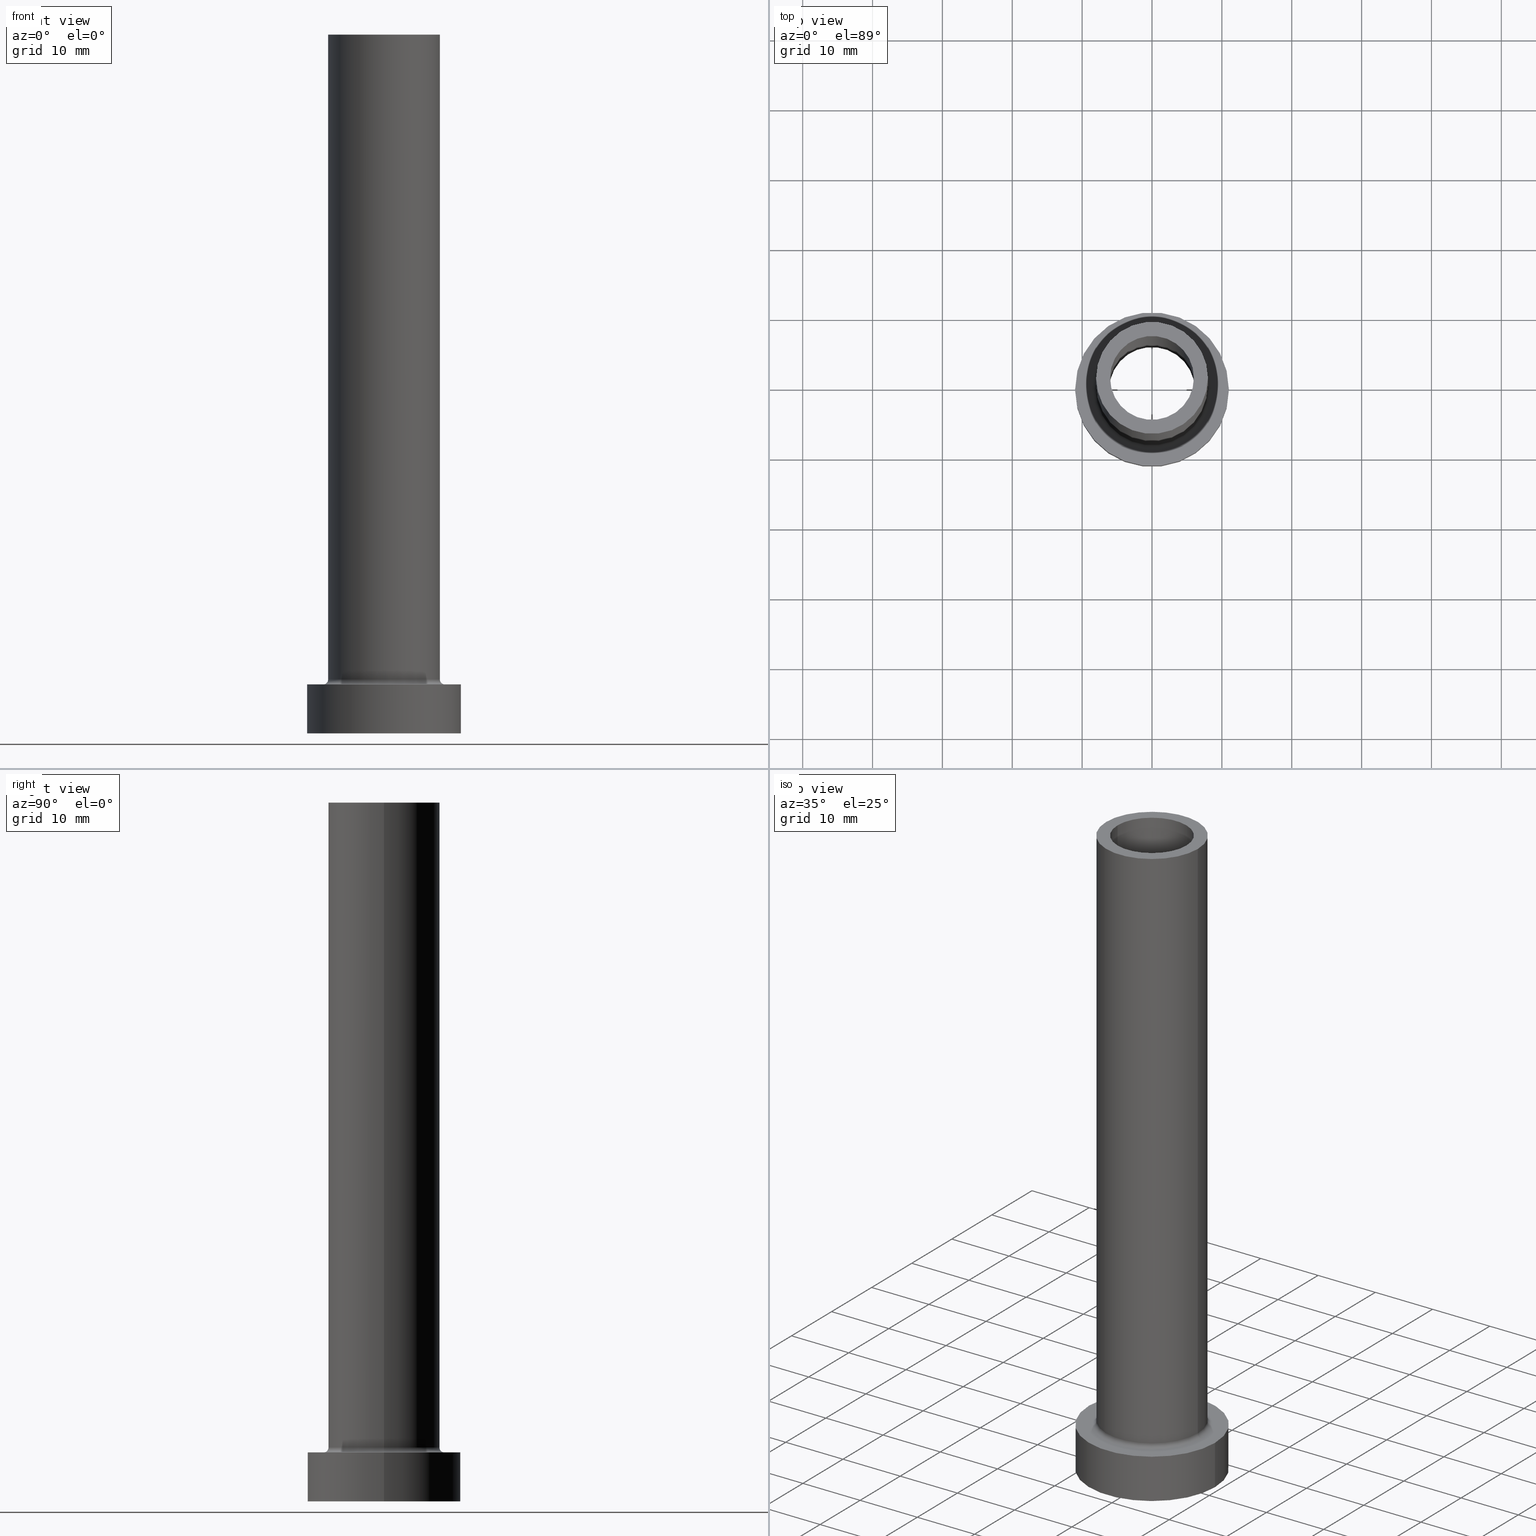
[diagram: canonical four-view strip — front | top / right | iso, engineering-drawing reading convention]
A machine part, canonical four-view strip (front | top / right | iso — engineering-drawing reading convention). The complete STEP part file that produces these views, byte-faithful:
ISO-10303-21;
HEADER;
FILE_DESCRIPTION (( 'STEP AP203' ),
    '1' );
FILE_NAME ('7b1e.STEP',
    '2023-02-13T07:43:09',
    ( '' ),
    ( '' ),
    'SwSTEP 2.0',
    'SolidWorks 2019',
    '' );
FILE_SCHEMA (( 'CONFIG_CONTROL_DESIGN' ));
ENDSEC;

DATA;
#1 = CARTESIAN_POINT ( 'NONE',  ( 0.000000000000000000, 0.000000000000000000, 0.000000000000000000 ) ) ;
#2 = DIRECTION ( 'NONE',  ( 0.000000000000000000, 0.000000000000000000, 1.000000000000000000 ) ) ;
#3 = APPROVAL_PERSON_ORGANIZATION ( #289, #35, #211 ) ;
#4 = APPROVAL ( #451, 'NEUR�EN�' ) ;
#5 = DIRECTION ( 'NONE',  ( 1.000000000000000000, 0.000000000000000000, 0.000000000000000000 ) ) ;
#6 = CARTESIAN_POINT ( 'NONE',  ( 0.000000000000000000, 0.000000000000000000, 7.000000000000000000 ) ) ;
#7 = ORIENTED_EDGE ( 'NONE', *, *, #260, .T. ) ;
#8 = DIRECTION ( 'NONE',  ( -1.000000000000000000, 0.000000000000000000, 0.000000000000000000 ) ) ;
#9 = EDGE_LOOP ( 'NONE', ( #370, #77, #383, #232 ) ) ;
#10 = VECTOR ( 'NONE', #273, 1000.000000000000000 ) ;
#11 = EDGE_CURVE ( 'NONE', #124, #224, #206, .T. ) ;
#12 = ORIENTED_EDGE ( 'NONE', *, *, #170, .T. ) ;
#13 = AXIS2_PLACEMENT_3D ( 'NONE', #104, #250, #63 ) ;
#14 = EDGE_LOOP ( 'NONE', ( #439, #444, #348, #274 ) ) ;
#15 = ADVANCED_FACE ( 'NONE', ( #317 ), #64, .F. ) ;
#16 = CARTESIAN_POINT ( 'NONE',  ( 0.000000000000000000, 0.000000000000000000, 100.0000000000000000 ) ) ;
#17 = DIRECTION ( 'NONE',  ( -0.000000000000000000, -0.000000000000000000, -1.000000000000000000 ) ) ;
#18 = CARTESIAN_POINT ( 'NONE',  ( -11.00000000000000000, 0.000000000000000000, 7.000000000000000000 ) ) ;
#19 = ORIENTED_EDGE ( 'NONE', *, *, #460, .F. ) ;
#20 = DIRECTION ( 'NONE',  ( 0.000000000000000000, 0.000000000000000000, 1.000000000000000000 ) ) ;
#21 = ORIENTED_EDGE ( 'NONE', *, *, #399, .F. ) ;
#22 = ADVANCED_FACE ( 'NONE', ( #238 ), #341, .F. ) ;
#23 = VERTEX_POINT ( 'NONE', #199 ) ;
#24 = DIRECTION ( 'NONE',  ( 0.000000000000000000, 0.000000000000000000, 1.000000000000000000 ) ) ;
#25 = PERSON_AND_ORGANIZATION ( #48, #103 ) ;
#26 = DIRECTION ( 'NONE',  ( 0.000000000000000000, 0.000000000000000000, -1.000000000000000000 ) ) ;
#27 = PERSON_AND_ORGANIZATION ( #48, #103 ) ;
#28 = DIRECTION ( 'NONE',  ( 0.000000000000000000, -1.000000000000000000, 0.000000000000000000 ) ) ;
#29 = CARTESIAN_POINT ( 'NONE',  ( -8.699999999999999289, 1.065442715258197248E-15, 7.699999999999998401 ) ) ;
#30 = AXIS2_PLACEMENT_3D ( 'NONE', #130, #278, #240 ) ;
#31 = CIRCLE ( 'NONE', #175, 8.000000000000000000 ) ;
#32 = DIRECTION ( 'NONE',  ( -1.000000000000000000, 0.000000000000000000, 0.000000000000000000 ) ) ;
#33 = CARTESIAN_POINT ( 'NONE',  ( 0.000000000000000000, 0.000000000000000000, 72.39482681718907031 ) ) ;
#34 = ORIENTED_EDGE ( 'NONE', *, *, #230, .T. ) ;
#35 = APPROVAL ( #144, 'NEUR�EN�' ) ;
#36 = PLANE ( 'NONE',  #183 ) ;
#37 = ORIENTED_EDGE ( 'NONE', *, *, #294, .T. ) ;
#38 = AXIS2_PLACEMENT_3D ( 'NONE', #33, #329, #258 ) ;
#39 = DIRECTION ( 'NONE',  ( 1.000000000000000000, 0.000000000000000000, -0.000000000000000000 ) ) ;
#40 = ORIENTED_EDGE ( 'NONE', *, *, #260, .F. ) ;
#41 = CARTESIAN_POINT ( 'NONE',  ( 0.000000000000000000, 0.000000000000000000, 55.00000000000000711 ) ) ;
#42 = VERTEX_POINT ( 'NONE', #276 ) ;
#43 = FACE_OUTER_BOUND ( 'NONE', #428, .T. ) ;
#44 = EDGE_LOOP ( 'NONE', ( #406, #344 ) ) ;
#45 = DIRECTION ( 'NONE',  ( 1.000000000000000000, 0.000000000000000000, 0.000000000000000000 ) ) ;
#46 = DIRECTION ( 'NONE',  ( -1.000000000000000000, 0.000000000000000000, 0.000000000000000000 ) ) ;
#47 = ORIENTED_EDGE ( 'NONE', *, *, #230, .F. ) ;
#48 = PERSON ( 'NEUR�EN�', 'NEUR�EN�', 'NEUR�EN�', ('NEUR�EN�'), ('NEUR�EN�'), ('NEUR�EN�') ) ;
#49 = DIRECTION ( 'NONE',  ( 1.000000000000000000, 0.000000000000000000, -0.000000000000000000 ) ) ;
#50 = CARTESIAN_POINT ( 'NONE',  ( 0.000000000000000000, 0.000000000000000000, 7.000000000000000000 ) ) ;
#51 = CC_DESIGN_APPROVAL ( #4, ( #65 ) ) ;
#52 =( LENGTH_UNIT ( ) NAMED_UNIT ( * ) SI_UNIT ( .MILLI., .METRE. ) );
#53 = ORIENTED_EDGE ( 'NONE', *, *, #125, .T. ) ;
#54 = CIRCLE ( 'NONE', #292, 11.00000000000000000 ) ;
#55 =( NAMED_UNIT ( * ) PLANE_ANGLE_UNIT ( ) SI_UNIT ( $, .RADIAN. ) );
#56 = ORIENTED_EDGE ( 'NONE', *, *, #74, .F. ) ;
#57 = CLOSED_SHELL ( 'NONE', ( #112, #301, #15, #254, #452, #72, #396, #245, #433, #382, #239, #367, #89, #22 ) ) ;
#58 = APPLICATION_CONTEXT ( 'configuration controlled 3d designs of mechanical parts and assemblies' ) ;
#59 = MECHANICAL_CONTEXT ( 'NONE', #58, 'mechanical' ) ;
#60 = DIRECTION ( 'NONE',  ( -0.000000000000000000, -0.000000000000000000, -1.000000000000000000 ) ) ;
#61 = FACE_OUTER_BOUND ( 'NONE', #430, .T. ) ;
#62 = SECURITY_CLASSIFICATION_LEVEL ( 'unclassified' ) ;
#63 = DIRECTION ( 'NONE',  ( 1.000000000000000000, 0.000000000000000000, 0.000000000000000000 ) ) ;
#64 = TOROIDAL_SURFACE ( 'NONE', #355, 8.699999999999999289, 0.6999999999999999556 ) ;
#65 = PRODUCT_DEFINITION ( 'NEZN�M�', '', #415, #272 ) ;
#66 = CALENDAR_DATE ( 2023, 13, 2 ) ;
#67 = DIRECTION ( 'NONE',  ( 0.000000000000000000, 0.000000000000000000, 1.000000000000000000 ) ) ;
#68 = EDGE_CURVE ( 'NONE', #345, #364, #262, .T. ) ;
#69 = DIRECTION ( 'NONE',  ( -0.000000000000000000, -0.000000000000000000, -1.000000000000000000 ) ) ;
#70 = EDGE_CURVE ( 'NONE', #236, #334, #442, .T. ) ;
#71 = CC_DESIGN_APPROVAL ( #35, ( #441 ) ) ;
#72 = ADVANCED_FACE ( 'NONE', ( #410 ), #94, .T. ) ;
#73 = DIRECTION ( 'NONE',  ( 1.000000000000000000, 0.000000000000000000, 0.000000000000000000 ) ) ;
#74 = EDGE_CURVE ( 'NONE', #414, #448, #327, .T. ) ;
#75 = CIRCLE ( 'NONE', #85, 6.150000000000000355 ) ;
#76 = CYLINDRICAL_SURFACE ( 'NONE', #405, 6.150000000000000355 ) ;
#77 = ORIENTED_EDGE ( 'NONE', *, *, #122, .T. ) ;
#78 = CARTESIAN_POINT ( 'NONE',  ( 0.000000000000000000, 0.000000000000000000, 100.0000000000000000 ) ) ;
#79 = ORIENTED_EDGE ( 'NONE', *, *, #417, .T. ) ;
#80 = AXIS2_PLACEMENT_3D ( 'NONE', #16, #309, #46 ) ;
#81 = CARTESIAN_POINT ( 'NONE',  ( 8.699999999999999289, 0.000000000000000000, 6.999999999999999112 ) ) ;
#82 = ORIENTED_EDGE ( 'NONE', *, *, #146, .F. ) ;
#83 = EDGE_CURVE ( 'NONE', #42, #236, #362, .T. ) ;
#84 = CC_DESIGN_PERSON_AND_ORGANIZATION_ASSIGNMENT ( #141, #287, ( #415 ) ) ;
#85 = AXIS2_PLACEMENT_3D ( 'NONE', #391, #67, #456 ) ;
#86 = EDGE_LOOP ( 'NONE', ( #150, #194, #263, #305 ) ) ;
#87 = CARTESIAN_POINT ( 'NONE',  ( 0.000000000000000000, 0.000000000000000000, 7.000000000000000000 ) ) ;
#88 = ORIENTED_EDGE ( 'NONE', *, *, #373, .F. ) ;
#89 = ADVANCED_FACE ( 'NONE', ( #422, #295 ), #322, .F. ) ;
#90 = VECTOR ( 'NONE', #233, 1000.000000000000000 ) ;
#91 = PLANE ( 'NONE',  #218 ) ;
#92 = DIRECTION ( 'NONE',  ( -1.000000000000000000, 0.000000000000000000, 0.000000000000000000 ) ) ;
#93 = VECTOR ( 'NONE', #147, 1000.000000000000000 ) ;
#94 = CYLINDRICAL_SURFACE ( 'NONE', #212, 11.00000000000000000 ) ;
#95 = DIRECTION ( 'NONE',  ( 1.000000000000000000, 0.000000000000000000, 0.000000000000000000 ) ) ;
#96 = ORIENTED_EDGE ( 'NONE', *, *, #74, .T. ) ;
#97 = ORIENTED_EDGE ( 'NONE', *, *, #173, .F. ) ;
#98 = APPLICATION_PROTOCOL_DEFINITION ( 'international standard', 'config_control_design', 1994, #113 ) ;
#99 = ORIENTED_EDGE ( 'NONE', *, *, #402, .T. ) ;
#100 = PERSON_AND_ORGANIZATION ( #48, #103 ) ;
#101 = DIRECTION ( 'NONE',  ( 0.000000000000000000, 0.000000000000000000, 1.000000000000000000 ) ) ;
#102 = APPROVAL_ROLE ( '' ) ;
#103 = ORGANIZATION ( 'NEUR�EN�', 'NEUR�EN�', '' ) ;
#104 = CARTESIAN_POINT ( 'NONE',  ( 0.000000000000000000, 0.000000000000000000, 7.699999999999998401 ) ) ;
#105 = APPROVAL ( #282, 'NEUR�EN�' ) ;
#106 = MANIFOLD_SOLID_BREP ( 'Odebrat vysunut�m4', #57 ) ;
#107 = AXIS2_PLACEMENT_3D ( 'NONE', #368, #193, #39 ) ;
#108 = COORDINATED_UNIVERSAL_TIME_OFFSET ( 1, 0, .AHEAD. ) ;
#109 = DIRECTION ( 'NONE',  ( -1.000000000000000000, 1.224646799147353207E-16, 0.000000000000000000 ) ) ;
#110 = DATE_AND_TIME ( #392, #164 ) ;
#111 = CARTESIAN_POINT ( 'NONE',  ( -11.00000000000000000, 0.000000000000000000, 7.000000000000000000 ) ) ;
#112 = ADVANCED_FACE ( 'NONE', ( #424 ), #138, .F. ) ;
#113 = APPLICATION_CONTEXT ( 'configuration controlled 3d designs of mechanical parts and assemblies' ) ;
#114 = DIRECTION ( 'NONE',  ( 1.000000000000000000, 0.000000000000000000, 0.000000000000000000 ) ) ;
#115 = CARTESIAN_POINT ( 'NONE',  ( 0.000000000000000000, 0.000000000000000000, 7.699999999999998401 ) ) ;
#116 = ORIENTED_EDGE ( 'NONE', *, *, #399, .T. ) ;
#117 = CIRCLE ( 'NONE', #220, 6.000000000000000888 ) ;
#118 = AXIS2_PLACEMENT_3D ( 'NONE', #181, #145, #253 ) ;
#119 = CARTESIAN_POINT ( 'NONE',  ( 0.000000000000000000, 0.000000000000000000, 7.000000000000000000 ) ) ;
#120 = ORIENTED_EDGE ( 'NONE', *, *, #192, .T. ) ;
#121 = ORIENTED_EDGE ( 'NONE', *, *, #70, .F. ) ;
#122 = EDGE_CURVE ( 'NONE', #197, #23, #320, .T. ) ;
#123 = FACE_OUTER_BOUND ( 'NONE', #284, .T. ) ;
#124 = VERTEX_POINT ( 'NONE', #358 ) ;
#125 = EDGE_CURVE ( 'NONE', #42, #336, #425, .T. ) ;
#126 = VERTEX_POINT ( 'NONE', #286 ) ;
#127 = APPLICATION_PROTOCOL_DEFINITION ( 'international standard', 'config_control_design', 1994, #58 ) ;
#128 = ORIENTED_EDGE ( 'NONE', *, *, #225, .F. ) ;
#129 = DIRECTION ( 'NONE',  ( -0.000000000000000000, -0.000000000000000000, -1.000000000000000000 ) ) ;
#130 = CARTESIAN_POINT ( 'NONE',  ( 0.000000000000000000, 0.000000000000000000, 100.0000000000000000 ) ) ;
#131 = AXIS2_PLACEMENT_3D ( 'NONE', #389, #26, #32 ) ;
#132 = CARTESIAN_POINT ( 'NONE',  ( 11.00000000000000000, 1.347111479062088405E-15, 7.000000000000000000 ) ) ;
#133 = VERTEX_POINT ( 'NONE', #184 ) ;
#134 = AXIS2_PLACEMENT_3D ( 'NONE', #445, #20, #95 ) ;
#135 = COORDINATED_UNIVERSAL_TIME_OFFSET ( 1, 0, .AHEAD. ) ;
#136 = EDGE_LOOP ( 'NONE', ( #19, #381 ) ) ;
#137 = PERSON_AND_ORGANIZATION_ROLE ( 'classification_officer' ) ;
#138 = CYLINDRICAL_SURFACE ( 'NONE', #131, 6.000000000000000888 ) ;
#139 = COORDINATED_UNIVERSAL_TIME_OFFSET ( 1, 0, .AHEAD. ) ;
#140 = LINE ( 'NONE', #288, #384 ) ;
#141 = PERSON_AND_ORGANIZATION ( #48, #103 ) ;
#142 = DIRECTION ( 'NONE',  ( 0.000000000000000000, 0.000000000000000000, 1.000000000000000000 ) ) ;
#143 = CIRCLE ( 'NONE', #235, 8.000000000000000000 ) ;
#144 = APPROVAL_STATUS ( 'not_yet_approved' ) ;
#145 = DIRECTION ( 'NONE',  ( 0.000000000000000000, 0.000000000000000000, 1.000000000000000000 ) ) ;
#146 = EDGE_CURVE ( 'NONE', #133, #448, #140, .T. ) ;
#147 = DIRECTION ( 'NONE',  ( 0.000000000000000000, 0.000000000000000000, -1.000000000000000000 ) ) ;
#148 = DIRECTION ( 'NONE',  ( 0.000000000000000000, 0.000000000000000000, -1.000000000000000000 ) ) ;
#149 =( GEOMETRIC_REPRESENTATION_CONTEXT ( 3 ) GLOBAL_UNCERTAINTY_ASSIGNED_CONTEXT ( ( #251 ) ) GLOBAL_UNIT_ASSIGNED_CONTEXT ( ( #52, #55, #438 ) ) REPRESENTATION_CONTEXT ( 'NONE', 'WORKASPACE' ) );
#150 = ORIENTED_EDGE ( 'NONE', *, *, #255, .F. ) ;
#151 = VECTOR ( 'NONE', #431, 1000.000000000000000 ) ;
#152 = CARTESIAN_POINT ( 'NONE',  ( 0.000000000000000000, 0.000000000000000000, 72.39482681718907031 ) ) ;
#153 = CARTESIAN_POINT ( 'NONE',  ( 8.000000000000000000, 9.797174393178823685E-16, 7.699999999999998401 ) ) ;
#154 = CC_DESIGN_PERSON_AND_ORGANIZATION_ASSIGNMENT ( #27, #421, ( #415 ) ) ;
#155 = VERTEX_POINT ( 'NONE', #111 ) ;
#156 = CARTESIAN_POINT ( 'NONE',  ( -8.000000000000000000, 0.000000000000000000, 7.699999999999998401 ) ) ;
#157 = TOROIDAL_SURFACE ( 'NONE', #13, 8.699999999999999289, 0.6999999999999999556 ) ;
#158 = ORIENTED_EDGE ( 'NONE', *, *, #192, .F. ) ;
#159 = AXIS2_PLACEMENT_3D ( 'NONE', #208, #24, #293 ) ;
#160 = EDGE_LOOP ( 'NONE', ( #243, #401, #398, #372 ) ) ;
#161 = CYLINDRICAL_SURFACE ( 'NONE', #434, 11.00000000000000000 ) ;
#162 = EDGE_CURVE ( 'NONE', #334, #364, #390, .T. ) ;
#163 = DIRECTION ( 'NONE',  ( 1.000000000000000000, 0.000000000000000000, 0.000000000000000000 ) ) ;
#164 = LOCAL_TIME ( 8, 43, 9.000000000000000000, #252 ) ;
#165 = FACE_OUTER_BOUND ( 'NONE', #204, .T. ) ;
#166 = ORIENTED_EDGE ( 'NONE', *, *, #170, .F. ) ;
#167 = CIRCLE ( 'NONE', #227, 6.000000000000000888 ) ;
#168 = CARTESIAN_POINT ( 'NONE',  ( 0.000000000000000000, 0.000000000000000000, 7.000000000000000000 ) ) ;
#169 = ORIENTED_EDGE ( 'NONE', *, *, #215, .T. ) ;
#170 = EDGE_CURVE ( 'NONE', #336, #334, #229, .T. ) ;
#171 = DIRECTION ( 'NONE',  ( 0.000000000000000000, 0.000000000000000000, 1.000000000000000000 ) ) ;
#172 = CALENDAR_DATE ( 2023, 13, 2 ) ;
#173 = EDGE_CURVE ( 'NONE', #23, #365, #393, .T. ) ;
#174 = DIRECTION ( 'NONE',  ( 1.224646799147353207E-16, 1.000000000000000000, -0.000000000000000000 ) ) ;
#175 = AXIS2_PLACEMENT_3D ( 'NONE', #115, #332, #114 ) ;
#176 = APPROVAL_DATE_TIME ( #455, #4 ) ;
#177 = AXIS2_PLACEMENT_3D ( 'NONE', #326, #319, #419 ) ;
#178 = DIRECTION ( 'NONE',  ( -1.000000000000000000, 0.000000000000000000, 0.000000000000000000 ) ) ;
#179 = AXIS2_PLACEMENT_3D ( 'NONE', #223, #2, #427 ) ;
#180 = DATE_AND_TIME ( #66, #209 ) ;
#181 = CARTESIAN_POINT ( 'NONE',  ( 0.000000000000000000, 0.000000000000000000, 100.0000000000000000 ) ) ;
#182 = PERSON_AND_ORGANIZATION ( #48, #103 ) ;
#183 = AXIS2_PLACEMENT_3D ( 'NONE', #187, #298, #429 ) ;
#184 = CARTESIAN_POINT ( 'NONE',  ( -6.150000000000000355, 0.000000000000000000, 55.00000000000000711 ) ) ;
#185 = CARTESIAN_POINT ( 'NONE',  ( 11.00000000000000000, 1.347111479062088405E-15, 0.000000000000000000 ) ) ;
#186 = ORIENTED_EDGE ( 'NONE', *, *, #435, .F. ) ;
#187 = CARTESIAN_POINT ( 'NONE',  ( 0.000000000000000000, 0.000000000000000000, 100.0000000000000000 ) ) ;
#188 = PRODUCT_DEFINITION_SHAPE ( 'NONE', 'NONE',  #65 ) ;
#189 = DIRECTION ( 'NONE',  ( -1.000000000000000000, 0.000000000000000000, 0.000000000000000000 ) ) ;
#190 = DIRECTION ( 'NONE',  ( 0.000000000000000000, 0.000000000000000000, 1.000000000000000000 ) ) ;
#191 = ORIENTED_EDGE ( 'NONE', *, *, #417, .F. ) ;
#192 = EDGE_CURVE ( 'NONE', #133, #126, #75, .T. ) ;
#193 = DIRECTION ( 'NONE',  ( 0.000000000000000000, 0.000000000000000000, 1.000000000000000000 ) ) ;
#194 = ORIENTED_EDGE ( 'NONE', *, *, #162, .T. ) ;
#195 = LOCAL_TIME ( 8, 43, 9.000000000000000000, #108 ) ;
#196 = FACE_OUTER_BOUND ( 'NONE', #160, .T. ) ;
#197 = VERTEX_POINT ( 'NONE', #453 ) ;
#198 = CARTESIAN_POINT ( 'NONE',  ( 6.000000000000000888, 7.347880794884119736E-16, 55.00000000000000711 ) ) ;
#199 = CARTESIAN_POINT ( 'NONE',  ( -6.000000000000000888, 0.000000000000000000, 100.0000000000000000 ) ) ;
#200 = CYLINDRICAL_SURFACE ( 'NONE', #80, 8.000000000000000000 ) ;
#201 = ORIENTED_EDGE ( 'NONE', *, *, #460, .T. ) ;
#202 = CC_DESIGN_DATE_AND_TIME_ASSIGNMENT ( #360, #388, ( #65 ) ) ;
#203 = CARTESIAN_POINT ( 'NONE',  ( 0.000000000000000000, 0.000000000000000000, 0.000000000000000000 ) ) ;
#204 = EDGE_LOOP ( 'NONE', ( #446, #280, #79, #186 ) ) ;
#205 = VECTOR ( 'NONE', #279, 1000.000000000000000 ) ;
#206 = LINE ( 'NONE', #132, #205 ) ;
#207 = DIRECTION ( 'NONE',  ( 0.000000000000000000, 0.000000000000000000, 1.000000000000000000 ) ) ;
#208 = CARTESIAN_POINT ( 'NONE',  ( 0.000000000000000000, 0.000000000000000000, 55.00000000000000711 ) ) ;
#209 = LOCAL_TIME ( 8, 43, 9.000000000000000000, #416 ) ;
#210 = DIRECTION ( 'NONE',  ( 1.000000000000000000, 0.000000000000000000, 0.000000000000000000 ) ) ;
#211 = APPROVAL_ROLE ( '' ) ;
#212 = AXIS2_PLACEMENT_3D ( 'NONE', #50, #69, #178 ) ;
#213 = FACE_OUTER_BOUND ( 'NONE', #300, .T. ) ;
#214 = SHAPE_DEFINITION_REPRESENTATION ( #188, #354 ) ;
#215 = EDGE_CURVE ( 'NONE', #336, #345, #349, .T. ) ;
#216 = CARTESIAN_POINT ( 'NONE',  ( -8.000000000000000000, 0.000000000000000000, 100.0000000000000000 ) ) ;
#217 = APPROVAL_ROLE ( '' ) ;
#218 = AXIS2_PLACEMENT_3D ( 'NONE', #87, #270, #49 ) ;
#219 = CARTESIAN_POINT ( 'NONE',  ( 8.699999999999999289, 0.000000000000000000, 7.699999999999998401 ) ) ;
#220 = AXIS2_PLACEMENT_3D ( 'NONE', #361, #101, #248 ) ;
#221 = CARTESIAN_POINT ( 'NONE',  ( -8.699999999999999289, 1.065442715258197248E-15, 6.999999999999999112 ) ) ;
#222 = PRODUCT ( '7b1e', '7b1e', '', ( #59 ) ) ;
#223 = CARTESIAN_POINT ( 'NONE',  ( 0.000000000000000000, 0.000000000000000000, 0.000000000000000000 ) ) ;
#224 = VERTEX_POINT ( 'NONE', #185 ) ;
#225 = EDGE_CURVE ( 'NONE', #364, #345, #342, .T. ) ;
#226 = CC_DESIGN_PERSON_AND_ORGANIZATION_ASSIGNMENT ( #100, #137, ( #441 ) ) ;
#227 = AXIS2_PLACEMENT_3D ( 'NONE', #41, #190, #73 ) ;
#228 = ORIENTED_EDGE ( 'NONE', *, *, #352, .T. ) ;
#229 = CIRCLE ( 'NONE', #378, 8.000000000000000000 ) ;
#230 = EDGE_CURVE ( 'NONE', #365, #437, #117, .T. ) ;
#231 = CARTESIAN_POINT ( 'NONE',  ( 6.150000000000000355, 7.531577814756222064E-16, 72.39482681718907031 ) ) ;
#232 = ORIENTED_EDGE ( 'NONE', *, *, #277, .F. ) ;
#233 = DIRECTION ( 'NONE',  ( -0.000000000000000000, -0.000000000000000000, -1.000000000000000000 ) ) ;
#234 = ORIENTED_EDGE ( 'NONE', *, *, #83, .F. ) ;
#235 = AXIS2_PLACEMENT_3D ( 'NONE', #403, #330, #303 ) ;
#236 = VERTEX_POINT ( 'NONE', #216 ) ;
#237 = DIRECTION ( 'NONE',  ( 1.000000000000000000, 0.000000000000000000, 0.000000000000000000 ) ) ;
#238 = FACE_OUTER_BOUND ( 'NONE', #9, .T. ) ;
#239 = ADVANCED_FACE ( 'NONE', ( #61 ), #157, .F. ) ;
#240 = DIRECTION ( 'NONE',  ( 1.000000000000000000, 0.000000000000000000, 0.000000000000000000 ) ) ;
#241 = EDGE_LOOP ( 'NONE', ( #21, #56 ) ) ;
#242 = CIRCLE ( 'NONE', #449, 11.00000000000000000 ) ;
#243 = ORIENTED_EDGE ( 'NONE', *, *, #125, .F. ) ;
#244 = PERSON_AND_ORGANIZATION_ROLE ( 'creator' ) ;
#245 = ADVANCED_FACE ( 'NONE', ( #353, #213 ), #290, .F. ) ;
#246 = DIRECTION ( 'NONE',  ( 0.000000000000000000, 0.000000000000000000, -1.000000000000000000 ) ) ;
#247 = PERSON_AND_ORGANIZATION ( #48, #103 ) ;
#248 = DIRECTION ( 'NONE',  ( 1.000000000000000000, 0.000000000000000000, 0.000000000000000000 ) ) ;
#249 = CALENDAR_DATE ( 2023, 13, 2 ) ;
#250 = DIRECTION ( 'NONE',  ( 0.000000000000000000, 0.000000000000000000, 1.000000000000000000 ) ) ;
#251 = UNCERTAINTY_MEASURE_WITH_UNIT (LENGTH_MEASURE( 1.000000000000000082E-05 ), #52, 'distance_accuracy_value', 'NONE');
#252 = COORDINATED_UNIVERSAL_TIME_OFFSET ( 1, 0, .AHEAD. ) ;
#253 = DIRECTION ( 'NONE',  ( 1.000000000000000000, 0.000000000000000000, 0.000000000000000000 ) ) ;
#254 = ADVANCED_FACE ( 'NONE', ( #123 ), #400, .T. ) ;
#255 = EDGE_CURVE ( 'NONE', #334, #336, #31, .T. ) ;
#256 = CARTESIAN_POINT ( 'NONE',  ( 0.000000000000000000, 0.000000000000000000, 100.0000000000000000 ) ) ;
#257 = AXIS2_PLACEMENT_3D ( 'NONE', #203, #443, #275 ) ;
#258 = DIRECTION ( 'NONE',  ( -1.000000000000000000, 0.000000000000000000, 0.000000000000000000 ) ) ;
#259 = EDGE_CURVE ( 'NONE', #124, #155, #54, .T. ) ;
#260 = EDGE_CURVE ( 'NONE', #126, #133, #366, .T. ) ;
#261 = DIRECTION ( 'NONE',  ( -0.000000000000000000, -0.000000000000000000, -1.000000000000000000 ) ) ;
#262 = CIRCLE ( 'NONE', #411, 8.699999999999999289 ) ;
#263 = ORIENTED_EDGE ( 'NONE', *, *, #68, .F. ) ;
#264 = ORIENTED_EDGE ( 'NONE', *, *, #162, .F. ) ;
#265 = DIRECTION ( 'NONE',  ( 1.000000000000000000, 0.000000000000000000, 0.000000000000000000 ) ) ;
#266 = CIRCLE ( 'NONE', #134, 11.00000000000000000 ) ;
#267 = ORIENTED_EDGE ( 'NONE', *, *, #146, .T. ) ;
#268 = CIRCLE ( 'NONE', #179, 11.00000000000000000 ) ;
#269 = LINE ( 'NONE', #231, #151 ) ;
#270 = DIRECTION ( 'NONE',  ( 0.000000000000000000, 0.000000000000000000, 1.000000000000000000 ) ) ;
#271 = EDGE_LOOP ( 'NONE', ( #120, #228, #96, #82 ) ) ;
#272 = DESIGN_CONTEXT ( 'detailed design', #113, 'design' ) ;
#273 = DIRECTION ( 'NONE',  ( 0.000000000000000000, 0.000000000000000000, -1.000000000000000000 ) ) ;
#274 = ORIENTED_EDGE ( 'NONE', *, *, #373, .T. ) ;
#275 = DIRECTION ( 'NONE',  ( 1.000000000000000000, 0.000000000000000000, 0.000000000000000000 ) ) ;
#276 = CARTESIAN_POINT ( 'NONE',  ( 8.000000000000000000, 9.797174393178823685E-16, 100.0000000000000000 ) ) ;
#277 = EDGE_CURVE ( 'NONE', #437, #365, #167, .T. ) ;
#278 = DIRECTION ( 'NONE',  ( 0.000000000000000000, 0.000000000000000000, 1.000000000000000000 ) ) ;
#279 = DIRECTION ( 'NONE',  ( -0.000000000000000000, -0.000000000000000000, -1.000000000000000000 ) ) ;
#280 = ORIENTED_EDGE ( 'NONE', *, *, #11, .T. ) ;
#281 = CC_DESIGN_APPROVAL ( #105, ( #415 ) ) ;
#282 = APPROVAL_STATUS ( 'not_yet_approved' ) ;
#283 = AXIS2_PLACEMENT_3D ( 'NONE', #436, #302, #5 ) ;
#284 = EDGE_LOOP ( 'NONE', ( #234, #53, #12, #121 ) ) ;
#285 = DATE_TIME_ROLE ( 'classification_date' ) ;
#286 = CARTESIAN_POINT ( 'NONE',  ( 6.150000000000000355, 7.531577814756222064E-16, 55.00000000000000711 ) ) ;
#287 = PERSON_AND_ORGANIZATION_ROLE ( 'design_supplier' ) ;
#288 = CARTESIAN_POINT ( 'NONE',  ( -6.150000000000000355, 0.000000000000000000, 72.39482681718907031 ) ) ;
#289 = PERSON_AND_ORGANIZATION ( #48, #103 ) ;
#290 = PLANE ( 'NONE',  #107 ) ;
#291 = PRODUCT_RELATED_PRODUCT_CATEGORY ( 'detail', '', ( #222 ) ) ;
#292 = AXIS2_PLACEMENT_3D ( 'NONE', #6, #335, #265 ) ;
#293 = DIRECTION ( 'NONE',  ( 1.000000000000000000, 0.000000000000000000, -0.000000000000000000 ) ) ;
#294 = EDGE_CURVE ( 'NONE', #236, #42, #143, .T. ) ;
#295 = FACE_OUTER_BOUND ( 'NONE', #350, .T. ) ;
#296 = CARTESIAN_POINT ( 'NONE',  ( -11.00000000000000000, 0.000000000000000000, 0.000000000000000000 ) ) ;
#297 = EDGE_LOOP ( 'NONE', ( #201, #99, #47, #97 ) ) ;
#298 = DIRECTION ( 'NONE',  ( 0.000000000000000000, 0.000000000000000000, 1.000000000000000000 ) ) ;
#299 = AXIS2_PLACEMENT_3D ( 'NONE', #29, #174, #109 ) ;
#300 = EDGE_LOOP ( 'NONE', ( #88, #191 ) ) ;
#301 = ADVANCED_FACE ( 'NONE', ( #395 ), #76, .F. ) ;
#302 = DIRECTION ( 'NONE',  ( 0.000000000000000000, 0.000000000000000000, 1.000000000000000000 ) ) ;
#303 = DIRECTION ( 'NONE',  ( 1.000000000000000000, 0.000000000000000000, 0.000000000000000000 ) ) ;
#304 = LOCAL_TIME ( 8, 43, 9.000000000000000000, #139 ) ;
#305 = ORIENTED_EDGE ( 'NONE', *, *, #215, .F. ) ;
#306 = CC_DESIGN_PERSON_AND_ORGANIZATION_ASSIGNMENT ( #182, #244, ( #65 ) ) ;
#307 = AXIS2_PLACEMENT_3D ( 'NONE', #1, #60, #461 ) ;
#308 = ORIENTED_EDGE ( 'NONE', *, *, #83, .T. ) ;
#309 = DIRECTION ( 'NONE',  ( -0.000000000000000000, -0.000000000000000000, -1.000000000000000000 ) ) ;
#310 = CARTESIAN_POINT ( 'NONE',  ( 0.000000000000000000, 0.000000000000000000, 7.699999999999998401 ) ) ;
#311 = APPROVAL_PERSON_ORGANIZATION ( #25, #4, #217 ) ;
#312 = DIRECTION ( 'NONE',  ( -1.000000000000000000, 0.000000000000000000, 0.000000000000000000 ) ) ;
#313 = VERTEX_POINT ( 'NONE', #296 ) ;
#314 = AXIS2_PLACEMENT_3D ( 'NONE', #440, #408, #92 ) ;
#315 = ORIENTED_EDGE ( 'NONE', *, *, #386, .T. ) ;
#316 = CC_DESIGN_DATE_AND_TIME_ASSIGNMENT ( #318, #285, ( #441 ) ) ;
#317 = FACE_OUTER_BOUND ( 'NONE', #86, .T. ) ;
#318 = DATE_AND_TIME ( #172, #195 ) ;
#319 = DIRECTION ( 'NONE',  ( -0.000000000000000000, -0.000000000000000000, -1.000000000000000000 ) ) ;
#320 = CIRCLE ( 'NONE', #369, 6.000000000000000888 ) ;
#321 = CARTESIAN_POINT ( 'NONE',  ( 0.000000000000000000, 0.000000000000000000, 0.000000000000000000 ) ) ;
#322 = PLANE ( 'NONE',  #159 ) ;
#323 = PERSON_AND_ORGANIZATION ( #48, #103 ) ;
#324 = CARTESIAN_POINT ( 'NONE',  ( 8.000000000000000000, 9.797174393178823685E-16, 100.0000000000000000 ) ) ;
#325 = CALENDAR_DATE ( 2023, 13, 2 ) ;
#326 = CARTESIAN_POINT ( 'NONE',  ( 0.000000000000000000, 0.000000000000000000, 7.000000000000000000 ) ) ;
#327 = CIRCLE ( 'NONE', #307, 6.150000000000000355 ) ;
#328 = CARTESIAN_POINT ( 'NONE',  ( 0.000000000000000000, 0.000000000000000000, 7.699999999999998401 ) ) ;
#329 = DIRECTION ( 'NONE',  ( 0.000000000000000000, 0.000000000000000000, -1.000000000000000000 ) ) ;
#330 = DIRECTION ( 'NONE',  ( 0.000000000000000000, 0.000000000000000000, 1.000000000000000000 ) ) ;
#331 = EDGE_LOOP ( 'NONE', ( #34, #339 ) ) ;
#332 = DIRECTION ( 'NONE',  ( 0.000000000000000000, 0.000000000000000000, 1.000000000000000000 ) ) ;
#333 = AXIS2_PLACEMENT_3D ( 'NONE', #219, #28, #351 ) ;
#334 = VERTEX_POINT ( 'NONE', #156 ) ;
#335 = DIRECTION ( 'NONE',  ( 0.000000000000000000, 0.000000000000000000, 1.000000000000000000 ) ) ;
#336 = VERTEX_POINT ( 'NONE', #153 ) ;
#337 = CYLINDRICAL_SURFACE ( 'NONE', #38, 6.150000000000000355 ) ;
#338 = CC_DESIGN_SECURITY_CLASSIFICATION ( #441, ( #415 ) ) ;
#339 = ORIENTED_EDGE ( 'NONE', *, *, #277, .T. ) ;
#340 = DIRECTION ( 'NONE',  ( -0.000000000000000000, -0.000000000000000000, -1.000000000000000000 ) ) ;
#341 = CYLINDRICAL_SURFACE ( 'NONE', #314, 6.000000000000000888 ) ;
#342 = CIRCLE ( 'NONE', #177, 8.699999999999999289 ) ;
#343 = CARTESIAN_POINT ( 'NONE',  ( 6.150000000000000355, 7.531577814756222064E-16, 0.000000000000000000 ) ) ;
#344 = ORIENTED_EDGE ( 'NONE', *, *, #225, .T. ) ;
#345 = VERTEX_POINT ( 'NONE', #81 ) ;
#346 = LINE ( 'NONE', #409, #10 ) ;
#347 = CC_DESIGN_PERSON_AND_ORGANIZATION_ASSIGNMENT ( #247, #447, ( #222 ) ) ;
#348 = ORIENTED_EDGE ( 'NONE', *, *, #435, .T. ) ;
#349 = CIRCLE ( 'NONE', #333, 0.7000000000000000666 ) ;
#350 = EDGE_LOOP ( 'NONE', ( #158, #40 ) ) ;
#351 = DIRECTION ( 'NONE',  ( 0.000000000000000000, 0.000000000000000000, -1.000000000000000000 ) ) ;
#352 = EDGE_CURVE ( 'NONE', #126, #414, #269, .T. ) ;
#353 = FACE_BOUND ( 'NONE', #241, .T. ) ;
#354 = ADVANCED_BREP_SHAPE_REPRESENTATION ( '7b1e', ( #106, #394 ), #149 ) ;
#355 = AXIS2_PLACEMENT_3D ( 'NONE', #310, #375, #45 ) ;
#356 = APPROVAL_DATE_TIME ( #110, #35 ) ;
#357 = DIRECTION ( 'NONE',  ( 1.000000000000000000, 0.000000000000000000, 0.000000000000000000 ) ) ;
#358 = CARTESIAN_POINT ( 'NONE',  ( 11.00000000000000000, 1.347111479062088405E-15, 7.000000000000000000 ) ) ;
#359 = APPROVAL_PERSON_ORGANIZATION ( #323, #105, #102 ) ;
#360 = DATE_AND_TIME ( #325, #304 ) ;
#361 = CARTESIAN_POINT ( 'NONE',  ( 0.000000000000000000, 0.000000000000000000, 55.00000000000000711 ) ) ;
#362 = CIRCLE ( 'NONE', #118, 8.000000000000000000 ) ;
#363 = FACE_OUTER_BOUND ( 'NONE', #432, .T. ) ;
#364 = VERTEX_POINT ( 'NONE', #221 ) ;
#365 = VERTEX_POINT ( 'NONE', #371 ) ;
#366 = CIRCLE ( 'NONE', #283, 6.150000000000000355 ) ;
#367 = ADVANCED_FACE ( 'NONE', ( #43 ), #337, .F. ) ;
#368 = CARTESIAN_POINT ( 'NONE',  ( 0.000000000000000000, 0.000000000000000000, 0.000000000000000000 ) ) ;
#369 = AXIS2_PLACEMENT_3D ( 'NONE', #256, #458, #357 ) ;
#370 = ORIENTED_EDGE ( 'NONE', *, *, #402, .F. ) ;
#371 = CARTESIAN_POINT ( 'NONE',  ( -6.000000000000000888, 0.000000000000000000, 55.00000000000000711 ) ) ;
#372 = ORIENTED_EDGE ( 'NONE', *, *, #255, .T. ) ;
#373 = EDGE_CURVE ( 'NONE', #313, #224, #268, .T. ) ;
#374 = CARTESIAN_POINT ( 'NONE',  ( -6.150000000000000355, 0.000000000000000000, 0.000000000000000000 ) ) ;
#375 = DIRECTION ( 'NONE',  ( 0.000000000000000000, 0.000000000000000000, 1.000000000000000000 ) ) ;
#376 = FACE_BOUND ( 'NONE', #44, .T. ) ;
#377 = ORIENTED_EDGE ( 'NONE', *, *, #259, .T. ) ;
#378 = AXIS2_PLACEMENT_3D ( 'NONE', #328, #142, #385 ) ;
#379 = FACE_OUTER_BOUND ( 'NONE', #404, .T. ) ;
#380 = CARTESIAN_POINT ( 'NONE',  ( 0.000000000000000000, 0.000000000000000000, 7.000000000000000000 ) ) ;
#381 = ORIENTED_EDGE ( 'NONE', *, *, #122, .F. ) ;
#382 = ADVANCED_FACE ( 'NONE', ( #397, #363 ), #36, .T. ) ;
#383 = ORIENTED_EDGE ( 'NONE', *, *, #173, .T. ) ;
#384 = VECTOR ( 'NONE', #246, 1000.000000000000000 ) ;
#385 = DIRECTION ( 'NONE',  ( 1.000000000000000000, 0.000000000000000000, 0.000000000000000000 ) ) ;
#386 = EDGE_CURVE ( 'NONE', #155, #124, #242, .T. ) ;
#387 = DIRECTION ( 'NONE',  ( -0.000000000000000000, -0.000000000000000000, -1.000000000000000000 ) ) ;
#388 = DATE_TIME_ROLE ( 'creation_date' ) ;
#389 = CARTESIAN_POINT ( 'NONE',  ( 0.000000000000000000, 0.000000000000000000, 100.0000000000000000 ) ) ;
#390 = CIRCLE ( 'NONE', #299, 0.6999999999999992895 ) ;
#391 = CARTESIAN_POINT ( 'NONE',  ( 0.000000000000000000, 0.000000000000000000, 55.00000000000000711 ) ) ;
#392 = CALENDAR_DATE ( 2023, 13, 2 ) ;
#393 = LINE ( 'NONE', #420, #93 ) ;
#394 = AXIS2_PLACEMENT_3D ( 'NONE', #321, #207, #210 ) ;
#395 = FACE_OUTER_BOUND ( 'NONE', #271, .T. ) ;
#396 = ADVANCED_FACE ( 'NONE', ( #376, #379 ), #91, .T. ) ;
#397 = FACE_BOUND ( 'NONE', #136, .T. ) ;
#398 = ORIENTED_EDGE ( 'NONE', *, *, #70, .T. ) ;
#399 = EDGE_CURVE ( 'NONE', #448, #414, #459, .T. ) ;
#400 = CYLINDRICAL_SURFACE ( 'NONE', #450, 8.000000000000000000 ) ;
#401 = ORIENTED_EDGE ( 'NONE', *, *, #294, .F. ) ;
#402 = EDGE_CURVE ( 'NONE', #197, #437, #346, .T. ) ;
#403 = CARTESIAN_POINT ( 'NONE',  ( 0.000000000000000000, 0.000000000000000000, 100.0000000000000000 ) ) ;
#404 = EDGE_LOOP ( 'NONE', ( #315, #377 ) ) ;
#405 = AXIS2_PLACEMENT_3D ( 'NONE', #152, #148, #8 ) ;
#406 = ORIENTED_EDGE ( 'NONE', *, *, #68, .T. ) ;
#407 = LOCAL_TIME ( 8, 43, 9.000000000000000000, #135 ) ;
#408 = DIRECTION ( 'NONE',  ( 0.000000000000000000, 0.000000000000000000, -1.000000000000000000 ) ) ;
#409 = CARTESIAN_POINT ( 'NONE',  ( 6.000000000000000888, 7.347880794884119736E-16, 100.0000000000000000 ) ) ;
#410 = FACE_OUTER_BOUND ( 'NONE', #14, .T. ) ;
#411 = AXIS2_PLACEMENT_3D ( 'NONE', #380, #17, #163 ) ;
#412 = LINE ( 'NONE', #18, #90 ) ;
#413 = CARTESIAN_POINT ( 'NONE',  ( -8.000000000000000000, 0.000000000000000000, 100.0000000000000000 ) ) ;
#414 = VERTEX_POINT ( 'NONE', #343 ) ;
#415 = PRODUCT_DEFINITION_FORMATION_WITH_SPECIFIED_SOURCE ( 'LIBOVOLN�', '', #222, .NOT_KNOWN. ) ;
#416 = COORDINATED_UNIVERSAL_TIME_OFFSET ( 1, 0, .AHEAD. ) ;
#417 = EDGE_CURVE ( 'NONE', #224, #313, #266, .T. ) ;
#418 = ORIENTED_EDGE ( 'NONE', *, *, #352, .F. ) ;
#419 = DIRECTION ( 'NONE',  ( 1.000000000000000000, 0.000000000000000000, 0.000000000000000000 ) ) ;
#420 = CARTESIAN_POINT ( 'NONE',  ( -6.000000000000000888, 0.000000000000000000, 100.0000000000000000 ) ) ;
#421 = PERSON_AND_ORGANIZATION_ROLE ( 'creator' ) ;
#422 = FACE_BOUND ( 'NONE', #331, .T. ) ;
#423 = VECTOR ( 'NONE', #387, 1000.000000000000000 ) ;
#424 = FACE_OUTER_BOUND ( 'NONE', #297, .T. ) ;
#425 = LINE ( 'NONE', #324, #423 ) ;
#426 = CIRCLE ( 'NONE', #30, 6.000000000000000888 ) ;
#427 = DIRECTION ( 'NONE',  ( 1.000000000000000000, 0.000000000000000000, 0.000000000000000000 ) ) ;
#428 = EDGE_LOOP ( 'NONE', ( #418, #7, #267, #116 ) ) ;
#429 = DIRECTION ( 'NONE',  ( 1.000000000000000000, 0.000000000000000000, -0.000000000000000000 ) ) ;
#430 = EDGE_LOOP ( 'NONE', ( #264, #166, #169, #128 ) ) ;
#431 = DIRECTION ( 'NONE',  ( 0.000000000000000000, 0.000000000000000000, -1.000000000000000000 ) ) ;
#432 = EDGE_LOOP ( 'NONE', ( #37, #308 ) ) ;
#433 = ADVANCED_FACE ( 'NONE', ( #196 ), #200, .T. ) ;
#434 = AXIS2_PLACEMENT_3D ( 'NONE', #168, #340, #312 ) ;
#435 = EDGE_CURVE ( 'NONE', #155, #313, #412, .T. ) ;
#436 = CARTESIAN_POINT ( 'NONE',  ( 0.000000000000000000, 0.000000000000000000, 55.00000000000000711 ) ) ;
#437 = VERTEX_POINT ( 'NONE', #198 ) ;
#438 =( NAMED_UNIT ( * ) SI_UNIT ( $, .STERADIAN. ) SOLID_ANGLE_UNIT ( ) );
#439 = ORIENTED_EDGE ( 'NONE', *, *, #11, .F. ) ;
#440 = CARTESIAN_POINT ( 'NONE',  ( 0.000000000000000000, 0.000000000000000000, 100.0000000000000000 ) ) ;
#441 = SECURITY_CLASSIFICATION ( '', '', #62 ) ;
#442 = LINE ( 'NONE', #413, #454 ) ;
#443 = DIRECTION ( 'NONE',  ( -0.000000000000000000, -0.000000000000000000, -1.000000000000000000 ) ) ;
#444 = ORIENTED_EDGE ( 'NONE', *, *, #386, .F. ) ;
#445 = CARTESIAN_POINT ( 'NONE',  ( 0.000000000000000000, 0.000000000000000000, 0.000000000000000000 ) ) ;
#446 = ORIENTED_EDGE ( 'NONE', *, *, #259, .F. ) ;
#447 = PERSON_AND_ORGANIZATION_ROLE ( 'design_owner' ) ;
#448 = VERTEX_POINT ( 'NONE', #374 ) ;
#449 = AXIS2_PLACEMENT_3D ( 'NONE', #119, #171, #237 ) ;
#450 = AXIS2_PLACEMENT_3D ( 'NONE', #78, #261, #189 ) ;
#451 = APPROVAL_STATUS ( 'not_yet_approved' ) ;
#452 = ADVANCED_FACE ( 'NONE', ( #165 ), #161, .T. ) ;
#453 = CARTESIAN_POINT ( 'NONE',  ( 6.000000000000000888, 7.347880794884119736E-16, 100.0000000000000000 ) ) ;
#454 = VECTOR ( 'NONE', #129, 1000.000000000000000 ) ;
#455 = DATE_AND_TIME ( #249, #407 ) ;
#456 = DIRECTION ( 'NONE',  ( 1.000000000000000000, 0.000000000000000000, 0.000000000000000000 ) ) ;
#457 = APPROVAL_DATE_TIME ( #180, #105 ) ;
#458 = DIRECTION ( 'NONE',  ( 0.000000000000000000, 0.000000000000000000, 1.000000000000000000 ) ) ;
#459 = CIRCLE ( 'NONE', #257, 6.150000000000000355 ) ;
#460 = EDGE_CURVE ( 'NONE', #23, #197, #426, .T. ) ;
#461 = DIRECTION ( 'NONE',  ( 1.000000000000000000, 0.000000000000000000, 0.000000000000000000 ) ) ;
ENDSEC;
END-ISO-10303-21;
